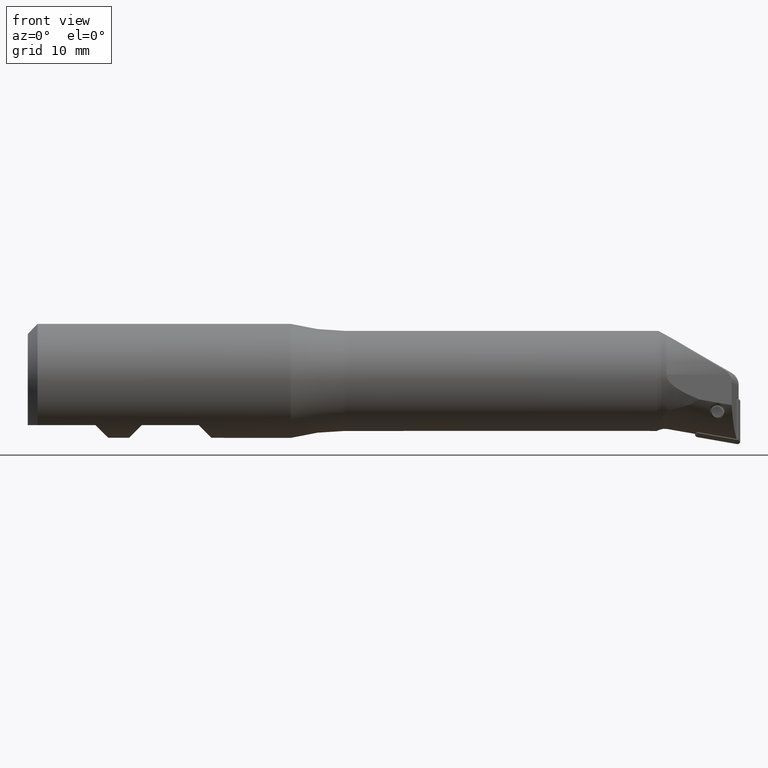
[diagram: clean part render]
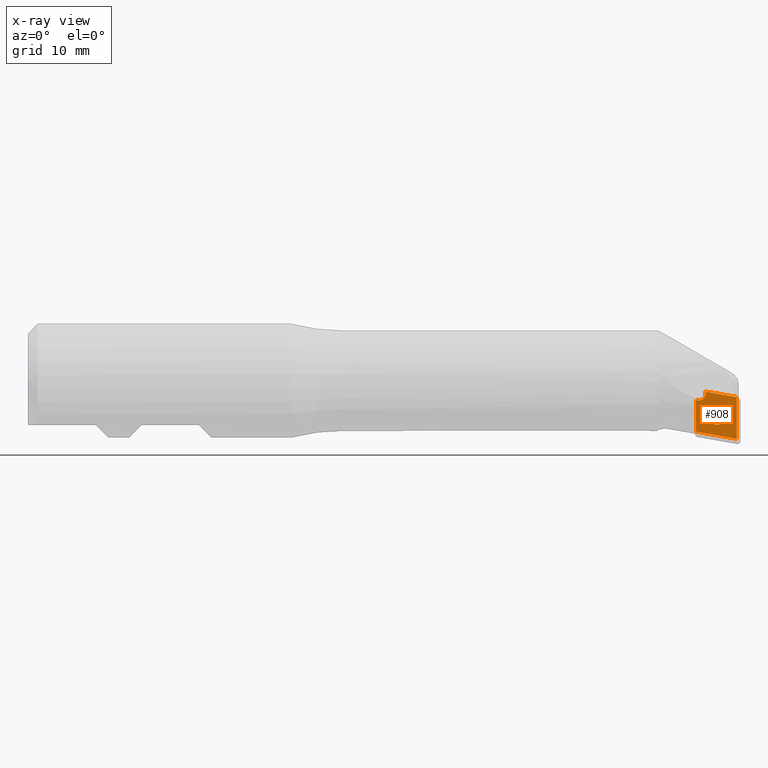
[diagram: x-ray — body ghosted, one internal face saturated and labeled with its STEP entity id]
A machine part, front view, then the same camera in x-ray: the body is ghosted and one INTERNAL B-rep face — a face not visible from any outside direction — is saturated and labeled: STEP entity #908.
In plain terms, the highlighted planar face has unit normal (-0, 0.9925, -0.1219).
Its self-contained STEP definition (entity closure, byte-faithful):
#83 = VECTOR ( 'NONE', #1391, 1000.000000000000100 ) ;
#113 = VECTOR ( 'NONE', #2434, 1000.000000000000100 ) ;
#132 = LINE ( 'NONE', #2489, #83 ) ;
#134 = AXIS2_PLACEMENT_3D ( 'NONE', #1347, #3595, #2483 ) ;
#167 = CARTESIAN_POINT ( 'NONE',  ( 93.75805041359457400, -2.361224429778113100, -8.576518215772036800 ) ) ;
#288 = CARTESIAN_POINT ( 'NONE',  ( 93.75805041359457400, -2.184526348738715200, -7.137427830628854300 ) ) ;
#295 = VERTEX_POINT ( 'NONE', #288 ) ;
#606 = DIRECTION ( 'NONE',  ( 0.0000000000000000000, 0.1218693434051477400, 0.9925461516413219800 ) ) ;
#619 = EDGE_CURVE ( 'NONE', #295, #2638, #3111, .T. ) ;
#659 = CIRCLE ( 'NONE', #2560, 1.350000000000003900 ) ;
#739 = CARTESIAN_POINT ( 'NONE',  ( 93.75805041359457400, -1.634828087883293500, -2.660494763367165400 ) ) ;
#770 = EDGE_CURVE ( 'NONE', #834, #834, #659, .T. ) ;
#834 = VERTEX_POINT ( 'NONE', #2073 ) ;
#882 = LINE ( 'NONE', #2742, #113 ) ;
#888 = CIRCLE ( 'NONE', #134, 1.000000000000000900 ) ;
#908 = ADVANCED_FACE ( 'NONE', ( #2357, #2039 ), #1498, .T. ) ;
#1004 = DIRECTION ( 'NONE',  ( 0.0000000000000000000, 0.1218693434051477500, 0.9925461516413219800 ) ) ;
#1168 = CARTESIAN_POINT ( 'NONE',  ( 101.0459899671526500, -2.341135813127565700, -8.412909562511201100 ) ) ;
#1253 = CARTESIAN_POINT ( 'NONE',  ( 100.0000000000000000, -1.599170037906448800, -2.370083251409711000 ) ) ;
#1337 = EDGE_LOOP ( 'NONE', ( #2089 ) ) ;
#1338 = EDGE_CURVE ( 'NONE', #1932, #2717, #882, .T. ) ;
#1347 = CARTESIAN_POINT ( 'NONE',  ( 94.15805041359459400, -1.523132989673563000, -1.750811189240479800 ) ) ;
#1391 = DIRECTION ( 'NONE',  ( 0.9848077530122072400, -0.02116238939576977100, -0.1723538304828446700 ) ) ;
#1489 = ORIENTED_EDGE ( 'NONE', *, *, #1929, .F. ) ;
#1498 = PLANE ( 'NONE',  #2351 ) ;
#1595 = VECTOR ( 'NONE', #2600, 1000.000000000000200 ) ;
#1612 = VERTEX_POINT ( 'NONE', #1746 ) ;
#1742 = CARTESIAN_POINT ( 'NONE',  ( 96.75805041359456000, -1.900752382032031300, -4.826274338529160900 ) ) ;
#1746 = CARTESIAN_POINT ( 'NONE',  ( 95.13010089929294100, -1.494521490236054000, -1.517789225997605600 ) ) ;
#1826 = ORIENTED_EDGE ( 'NONE', *, *, #1338, .T. ) ;
#1828 = EDGE_CURVE ( 'NONE', #1612, #1932, #132, .T. ) ;
#1861 = CARTESIAN_POINT ( 'NONE',  ( 99.50777274505108500, -2.308081288800532400, -8.143702065379931900 ) ) ;
#1929 = EDGE_CURVE ( 'NONE', #295, #2717, #3243, .T. ) ;
#1932 = VERTEX_POINT ( 'NONE', #2829 ) ;
#2039 = FACE_BOUND ( 'NONE', #1337, .T. ) ;
#2073 = CARTESIAN_POINT ( 'NONE',  ( 96.75805041359456000, -1.736228768435081400, -3.486337033813372300 ) ) ;
#2089 = ORIENTED_EDGE ( 'NONE', *, *, #770, .F. ) ;
#2296 = EDGE_CURVE ( 'NONE', #1612, #2638, #888, .T. ) ;
#2317 = VECTOR ( 'NONE', #1004, 1000.000000000000100 ) ;
#2320 = DIRECTION ( 'NONE',  ( -0.0000000000000000000, 0.9925461516413219800, -0.1218693434051477700 ) ) ;
#2351 = AXIS2_PLACEMENT_3D ( 'NONE', #1253, #3503, #2942 ) ;
#2357 = FACE_OUTER_BOUND ( 'NONE', #2779, .T. ) ;
#2434 = DIRECTION ( 'NONE',  ( -1.734723475976806900E-018, -0.1218693434051477500, -0.9925461516413219800 ) ) ;
#2483 = DIRECTION ( 'NONE',  ( 0.0000000000000000000, 0.1218693434051476700, 0.9925461516413220900 ) ) ;
#2489 = CARTESIAN_POINT ( 'NONE',  ( 93.75805041359457400, -1.465037698541490100, -1.277663012426834700 ) ) ;
#2560 = AXIS2_PLACEMENT_3D ( 'NONE', #1742, #2320, #606 ) ;
#2600 = DIRECTION ( 'NONE',  ( 0.9848077530122072400, -0.02116238939576977100, -0.1723538304828445600 ) ) ;
#2638 = VERTEX_POINT ( 'NONE', #739 ) ;
#2717 = VERTEX_POINT ( 'NONE', #1861 ) ;
#2742 = CARTESIAN_POINT ( 'NONE',  ( 99.50777274505108500, -2.484129184311493400, -9.577497114337068900 ) ) ;
#2779 = EDGE_LOOP ( 'NONE', ( #1489, #3214, #3307, #3174, #1826 ) ) ;
#2829 = CARTESIAN_POINT ( 'NONE',  ( 99.50777274505108500, -1.588592638603306700, -2.283937247177906900 ) ) ;
#2942 = DIRECTION ( 'NONE',  ( 0.0000000000000000000, 0.1218693434051477500, 0.9925461516413219800 ) ) ;
#3111 = LINE ( 'NONE', #167, #2317 ) ;
#3174 = ORIENTED_EDGE ( 'NONE', *, *, #1828, .T. ) ;
#3214 = ORIENTED_EDGE ( 'NONE', *, *, #619, .T. ) ;
#3243 = LINE ( 'NONE', #1168, #1595 ) ;
#3307 = ORIENTED_EDGE ( 'NONE', *, *, #2296, .F. ) ;
#3503 = DIRECTION ( 'NONE',  ( -1.409187505415834200E-017, 0.9925461516413219800, -0.1218693434051477500 ) ) ;
#3595 = DIRECTION ( 'NONE',  ( -1.409187505415834500E-017, 0.9925461516413220900, -0.1218693434051477700 ) ) ;